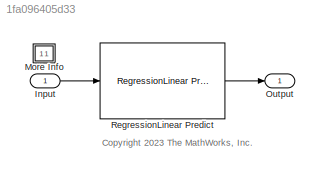
MODEL slx_1fa096405d33
KIND model
CONFIG AbsTol = auto
CONFIG EnableMultiTasking = off
CONFIG FixedStep = 1
CONFIG MaxStep = auto
CONFIG MinStep = auto
CONFIG PreLoadFcn = if ~exist("linearMdl","var")\n    \nrng("default") % For reproducibility\nn = 1e4;\nd = 1e3;\nnz = 0.1;\nX = sprandn(n,d,nz);\nY = X(:,100) + 2*X(:,200) + 0.3*randn(n,1);\n\nc = cvpartition(n,Holdout=0.1);\nidxPrsnt = training(c);\nidxFtr = test(c);\n\nprsntX = X(idxPrsnt,:);\nprsntY = Y(idxPrsnt);\nftrX = X(idxFtr,:);\nftrY = Y(idxFtr);\n\nlinearMdl = fitrlinear(prsntX,prsntY);\n\n[nftrX,p] = size(ftrX);\ninputStruct...<+111ch>
CONFIG RelTol = 1e-3
CONFIG SampleTimeConstraint = Unconstrained
CONFIG SolverName = FixedStepAuto
CONFIG StartTime = 0.0
CONFIG StopTime = inputStruct.time(end)
BLOCK [Inport] Input
BLOCK [SubSystem] More Info
  OpenFcn = showExample('stats/PredictClassLabelsUsingRegressionLinearPredictBlockExample')
BLOCK [Outport] Output
BLOCK [Reference] RegressionLinear Predict  REF=statsLibrary/Regression/RegressionLinear Predict
  SourceBlock = statsLibrary/Regression/RegressionLinear Predict
  SourceType = RegressionLinear Predict
ANNOTATION (root): <copyright redacted>
LINE Input:1 -> RegressionLinear Predict:1
LINE RegressionLinear Predict:1 -> Output:1
